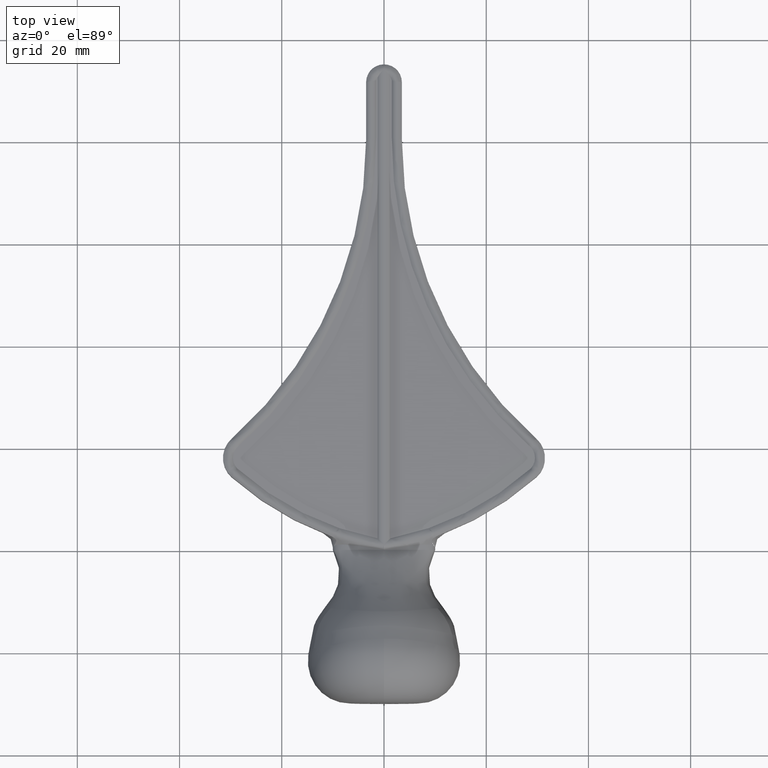
[diagram: clean part render]
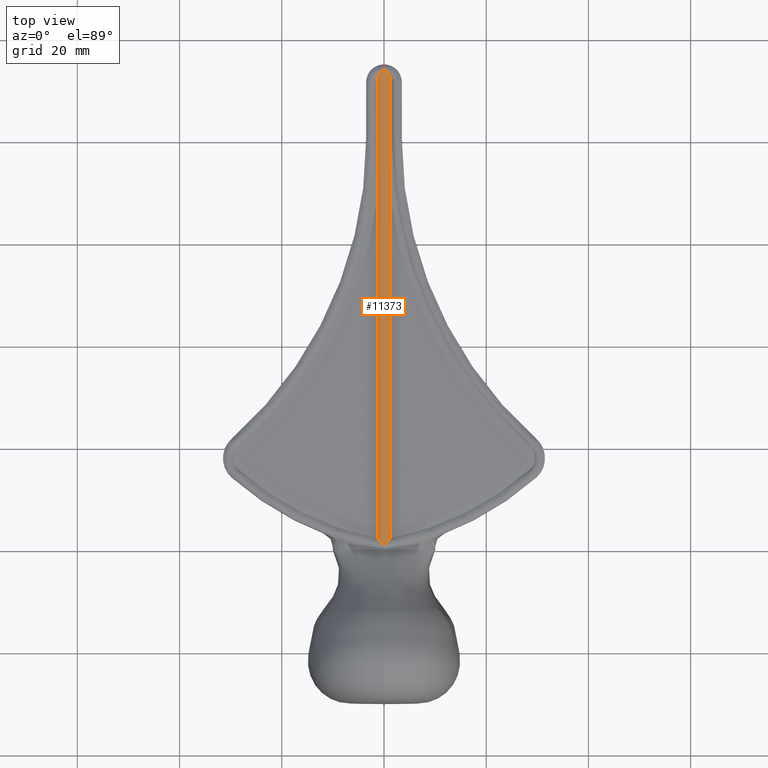
[diagram: same view with one face highlighted and labeled with its STEP entity id]
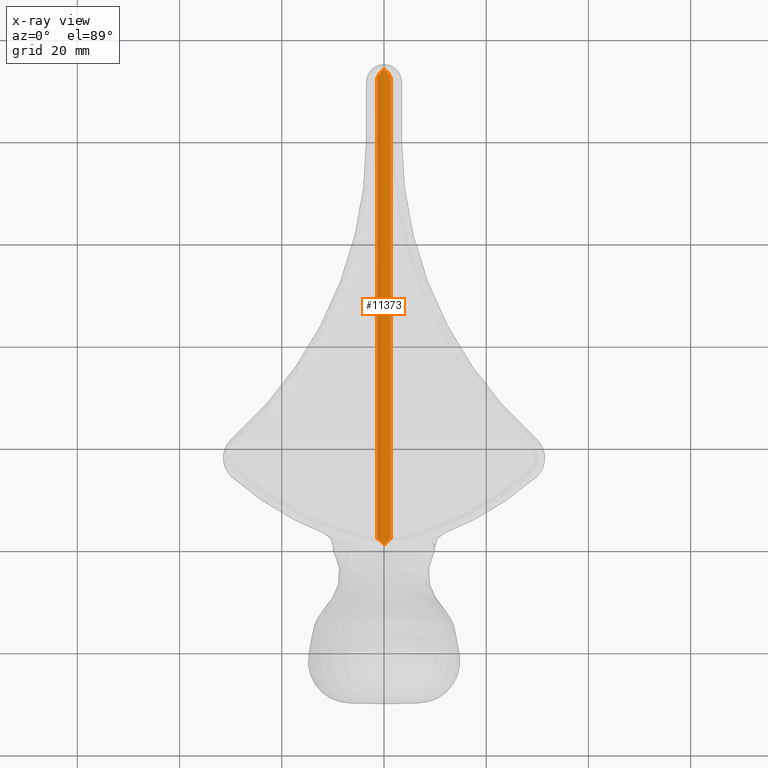
[diagram: x-ray of the same camera — body ghosted, the highlighted face saturated]
A machine part, top view. The second image highlights one B-rep face of the part: STEP entity #11373.
The next image is the same camera in x-ray: the body ghosted, the highlighted face saturated — about 0% of this face is hidden behind the body in this view.
In plain terms, the highlighted cylindrical surface (edge-blend (fillet) strip) has radius 1.8125 mm, axis along (0, -1, 0).
Its self-contained STEP definition (entity closure, byte-faithful):
#19 = ORIENTED_EDGE ( 'NONE', *, *, #2693, .F. ) ;
#42 = VECTOR ( 'NONE', #8442, 1000.000000000000000 ) ;
#125 = CARTESIAN_POINT ( 'NONE',  ( -1.124148415308674931, 92.74569335586328123, 2.869858652086975770 ) ) ;
#1147 = CARTESIAN_POINT ( 'NONE',  ( 1.124148415308674931, 92.74569335586328123, 2.869858652086975770 ) ) ;
#1155 = ORIENTED_EDGE ( 'NONE', *, *, #2931, .F. ) ;
#1210 = CARTESIAN_POINT ( 'NONE',  ( 1.249999999999995559, 92.43932929222734174, 2.750000000000000444 ) ) ;
#1544 = CARTESIAN_POINT ( 'NONE',  ( -0.2687164894685893923, 93.79146773986450114, 3.234406649292838942 ) ) ;
#1613 = CARTESIAN_POINT ( 'NONE',  ( -0.2192571773086757492, 1.219700591434541570, 3.249999999999999556 ) ) ;
#1630 = VERTEX_POINT ( 'NONE', #4256 ) ;
#1660 = DIRECTION ( 'NONE',  ( 0.000000000000000000, -1.000000000000000000, 0.000000000000000000 ) ) ;
#1857 = CARTESIAN_POINT ( 'NONE',  ( 0.2192571773086757492, 1.219700591434541570, 3.249999999999999556 ) ) ;
#2598 = CARTESIAN_POINT ( 'NONE',  ( -0.6307503517704938778, 93.42101183029551237, 3.140682218103487688 ) ) ;
#2622 = EDGE_LOOP ( 'NONE', ( #19, #7417, #1155, #6483, #5944, #8818 ) ) ;
#2693 = EDGE_CURVE ( 'NONE', #11973, #4717, #11698, .T. ) ;
#2734 = VERTEX_POINT ( 'NONE', #3550 ) ;
#2737 = CARTESIAN_POINT ( 'NONE',  ( 1.249999999999996003, 2.232262931100188919, 2.750000000000000444 ) ) ;
#2931 = EDGE_CURVE ( 'NONE', #12501, #9204, #5027, .T. ) ;
#3264 = CARTESIAN_POINT ( 'NONE',  ( 0.9494324411235295358, 93.02569425328650254, 2.998849412217323707 ) ) ;
#3371 = CYLINDRICAL_SURFACE ( 'NONE', #12687, 1.812499999999999556 ) ;
#3487 = CARTESIAN_POINT ( 'NONE',  ( 0.000000000000000000, 94.01940861307137709, 3.249999999999999556 ) ) ;
#3550 = CARTESIAN_POINT ( 'NONE',  ( -1.249999999999996003, 2.232262931100188919, 2.750000000000000444 ) ) ;
#3719 = CARTESIAN_POINT ( 'NONE',  ( -1.249999999999996003, 2.232262931100188919, 2.750000000000000444 ) ) ;
#3763 = DIRECTION ( 'NONE',  ( 0.000000000000000000, 0.000000000000000000, -1.000000000000000000 ) ) ;
#4107 = CARTESIAN_POINT ( 'NONE',  ( 1.249999999999996003, 2.232262931100188919, 2.750000000000000444 ) ) ;
#4256 = CARTESIAN_POINT ( 'NONE',  ( 0.000000000000000000, 0.9999999999999997780, 3.249999999999999556 ) ) ;
#4295 = CARTESIAN_POINT ( 'NONE',  ( 0.4334313610998377642, 1.436018698080588685, 3.211711281642350979 ) ) ;
#4321 = CARTESIAN_POINT ( 'NONE',  ( 0.2687164894685893923, 93.79146773986450114, 3.234406649292838942 ) ) ;
#4717 = VERTEX_POINT ( 'NONE', #2737 ) ;
#5027 = B_SPLINE_CURVE_WITH_KNOTS ( 'NONE', 3,
 ( #9411, #125, #7396, #2598, #7814, #1544, #9816, #5806 ),
 .UNSPECIFIED., .F., .F.,
 ( 4, 2, 2, 4 ),
 ( 0.000000000000000000, 0.001053037513482380470, 0.001579556270223570705, 0.002106075026964760941 ),
 .UNSPECIFIED. ) ;
#5457 = CARTESIAN_POINT ( 'NONE',  ( 1.250000000000000000, 95.00200000000000955, 2.749999999999999556 ) ) ;
#5806 = CARTESIAN_POINT ( 'NONE',  ( 0.000000000000000000, 94.01940861307137709, 3.249999999999999556 ) ) ;
#5944 = ORIENTED_EDGE ( 'NONE', *, *, #11428, .F. ) ;
#6088 = B_SPLINE_CURVE_WITH_KNOTS ( 'NONE', 3,
 ( #7843, #1613, #9887, #12057, #13039, #3719 ),
 .UNSPECIFIED., .F., .F.,
 ( 4, 2, 4 ),
 ( -0.001470907486858537023, -0.0005397376177834464555, 0.0003914322512916441118 ),
 .UNSPECIFIED. ) ;
#6481 = EDGE_CURVE ( 'NONE', #1630, #4717, #13223, .T. ) ;
#6483 = ORIENTED_EDGE ( 'NONE', *, *, #12118, .T. ) ;
#7183 = EDGE_CURVE ( 'NONE', #11973, #9204, #8661, .T. ) ;
#7396 = CARTESIAN_POINT ( 'NONE',  ( -0.9494324411235295358, 93.02569425328650254, 2.998849412217323707 ) ) ;
#7417 = ORIENTED_EDGE ( 'NONE', *, *, #7183, .T. ) ;
#7705 = DIRECTION ( 'NONE',  ( 0.000000000000000000, -1.000000000000000000, 0.000000000000000000 ) ) ;
#7814 = CARTESIAN_POINT ( 'NONE',  ( -0.5151400832629020599, 93.54802342956350003, 3.179829691132258329 ) ) ;
#7843 = CARTESIAN_POINT ( 'NONE',  ( 0.000000000000000000, 0.9999999999999997780, 3.249999999999999556 ) ) ;
#8329 = CARTESIAN_POINT ( 'NONE',  ( 1.249999999999995559, 92.43932929222734174, 2.750000000000000444 ) ) ;
#8419 = CARTESIAN_POINT ( 'NONE',  ( 0.6307503517704938778, 93.42101183029551237, 3.140682218103487688 ) ) ;
#8442 = DIRECTION ( 'NONE',  ( 0.000000000000000000, -1.000000000000000000, 0.000000000000000000 ) ) ;
#8494 = CARTESIAN_POINT ( 'NONE',  ( 0.5151400832629020599, 93.54802342956350003, 3.179829691132258329 ) ) ;
#8661 = B_SPLINE_CURVE_WITH_KNOTS ( 'NONE', 3,
 ( #8329, #1147, #3264, #8419, #8494, #4321, #11515, #3487 ),
 .UNSPECIFIED., .F., .F.,
 ( 4, 2, 2, 4 ),
 ( 0.000000000000000000, 0.001053037513482380470, 0.001579556270223570705, 0.002106075026964760941 ),
 .UNSPECIFIED. ) ;
#8818 = ORIENTED_EDGE ( 'NONE', *, *, #6481, .T. ) ;
#9204 = VERTEX_POINT ( 'NONE', #12064 ) ;
#9411 = CARTESIAN_POINT ( 'NONE',  ( -1.249999999999995559, 92.43932929222734174, 2.750000000000000444 ) ) ;
#9816 = CARTESIAN_POINT ( 'NONE',  ( -0.1364284884442865664, 93.90900130275613833, 3.250000000003074874 ) ) ;
#9887 = CARTESIAN_POINT ( 'NONE',  ( -0.4334313610998377642, 1.436018698080588685, 3.211711281642350979 ) ) ;
#11373 = ADVANCED_FACE ( 'NONE', ( #11759 ), #3371, .T. ) ;
#11427 = VECTOR ( 'NONE', #1660, 1000.000000000000000 ) ;
#11428 = EDGE_CURVE ( 'NONE', #1630, #2734, #6088, .T. ) ;
#11431 = CARTESIAN_POINT ( 'NONE',  ( -1.249999999999995559, 92.43932929222734174, 2.750000000000000444 ) ) ;
#11485 = CARTESIAN_POINT ( 'NONE',  ( 0.8537221807213467573, 1.854967254834114954, 3.052073273294297007 ) ) ;
#11515 = CARTESIAN_POINT ( 'NONE',  ( 0.1364284884442865664, 93.90900130275613833, 3.250000000003074874 ) ) ;
#11698 = LINE ( 'NONE', #5457, #42 ) ;
#11748 = LINE ( 'NONE', #13088, #11427 ) ;
#11759 = FACE_OUTER_BOUND ( 'NONE', #2622, .T. ) ;
#11973 = VERTEX_POINT ( 'NONE', #1210 ) ;
#12057 = CARTESIAN_POINT ( 'NONE',  ( -0.8537221807213467573, 1.854967254834114954, 3.052073273294297007 ) ) ;
#12064 = CARTESIAN_POINT ( 'NONE',  ( 0.000000000000000000, 94.01940861307137709, 3.249999999999999556 ) ) ;
#12118 = EDGE_CURVE ( 'NONE', #12501, #2734, #11748, .T. ) ;
#12156 = CARTESIAN_POINT ( 'NONE',  ( 0.000000000000000000, 0.9999999999999997780, 3.249999999999999556 ) ) ;
#12501 = VERTEX_POINT ( 'NONE', #11431 ) ;
#12521 = CARTESIAN_POINT ( 'NONE',  ( 1.061875898668105167, 2.060248470264426590, 2.929165810792223379 ) ) ;
#12687 = AXIS2_PLACEMENT_3D ( 'NONE', #12766, #7705, #3763 ) ;
#12766 = CARTESIAN_POINT ( 'NONE',  ( 0.000000000000000000, 95.00200000000000955, 1.437499999999999778 ) ) ;
#13039 = CARTESIAN_POINT ( 'NONE',  ( -1.061875898668105167, 2.060248470264426590, 2.929165810792223379 ) ) ;
#13088 = CARTESIAN_POINT ( 'NONE',  ( -1.250000000000000000, 95.00200000000000955, 2.749999999999999556 ) ) ;
#13223 = B_SPLINE_CURVE_WITH_KNOTS ( 'NONE', 3,
 ( #12156, #1857, #4295, #11485, #12521, #4107 ),
 .UNSPECIFIED., .F., .F.,
 ( 4, 2, 4 ),
 ( -0.001470907486858537023, -0.0005397376177834464555, 0.0003914322512916441118 ),
 .UNSPECIFIED. ) ;